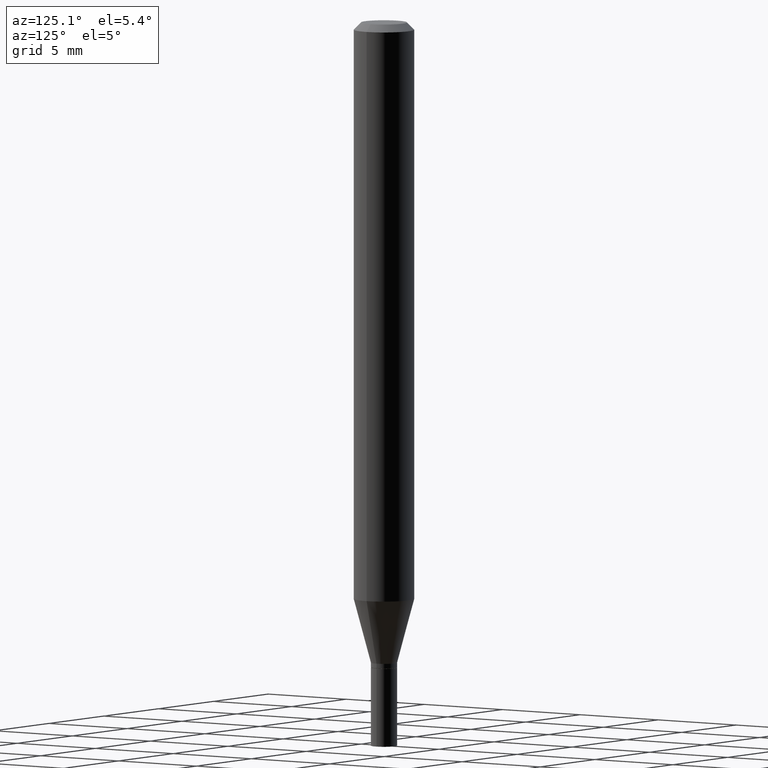
[diagram: clean part render]
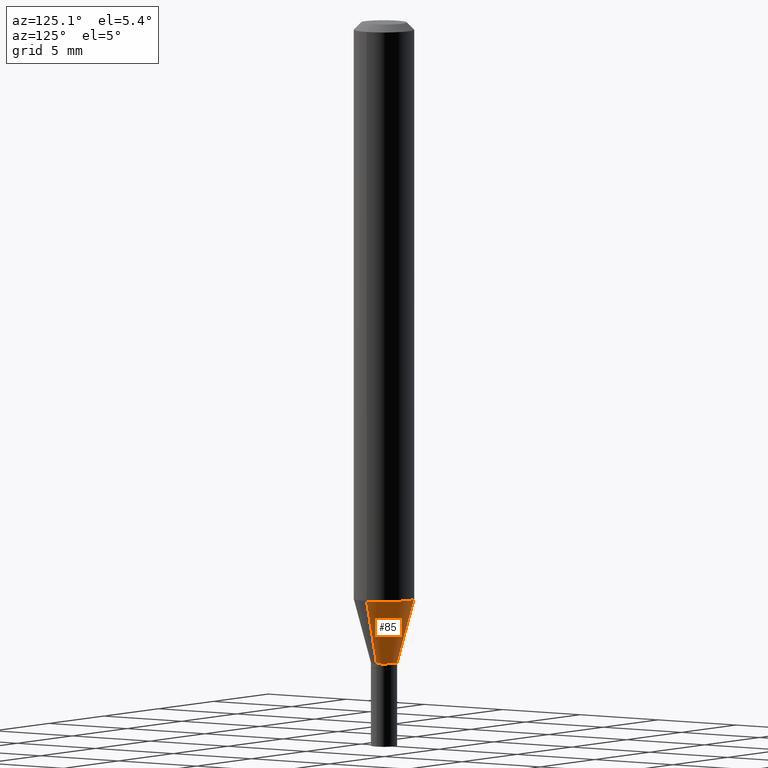
[diagram: same view with one face highlighted and labeled with its STEP entity id]
A machine part, auxiliary view. The second image highlights one B-rep face of the part: STEP entity #85.
In plain terms, the highlighted conical surface has half-angle 15 deg.
Its self-contained STEP definition (entity closure, byte-faithful):
#2 = EDGE_CURVE ( 'NONE', #42, #402, #408, .T. ) ;
#3 = DIRECTION ( 'NONE',  ( -0.2588190451025207395, 5.211531920934546309E-15, 0.9659258262890682012 ) ) ;
#14 = VECTOR ( 'NONE', #316, 39.37007874015748854 ) ;
#35 = EDGE_LOOP ( 'NONE', ( #266, #77, #74, #44 ) ) ;
#42 = VERTEX_POINT ( 'NONE', #252 ) ;
#44 = ORIENTED_EDGE ( 'NONE', *, *, #396, .F. ) ;
#50 = VECTOR ( 'NONE', #3, 39.37007874015748854 ) ;
#54 = DIRECTION ( 'NONE',  ( 1.000000000000000000, -6.982962677686279332E-15, 0.000000000000000000 ) ) ;
#55 = CARTESIAN_POINT ( 'NONE',  ( 0.02699999999999992684, -4.825227210281226768E-15, -1.328000000000000069 ) ) ;
#70 = CARTESIAN_POINT ( 'NONE',  ( 3.247582574613861342E-29, -4.636687217983698072E-15, -1.328000000000000069 ) ) ;
#74 = ORIENTED_EDGE ( 'NONE', *, *, #88, .F. ) ;
#77 = ORIENTED_EDGE ( 'NONE', *, *, #2, .T. ) ;
#85 = ADVANCED_FACE ( 'NONE', ( #243 ), #131, .T. ) ;
#88 = EDGE_CURVE ( 'NONE', #146, #402, #240, .T. ) ;
#99 = LINE ( 'NONE', #55, #14 ) ;
#128 = DIRECTION ( 'NONE',  ( -2.445468806185136597E-29, 3.491481338843145583E-15, 1.000000000000000000 ) ) ;
#131 = CONICAL_SURFACE ( 'NONE', #462, 0.02699999999999992684, 0.2617993877991494633 ) ;
#138 = EDGE_CURVE ( 'NONE', #257, #42, #264, .T. ) ;
#146 = VERTEX_POINT ( 'NONE', #195 ) ;
#149 = DIRECTION ( 'NONE',  ( -2.445468806185136597E-29, 3.491481338843145583E-15, 1.000000000000000000 ) ) ;
#179 = CARTESIAN_POINT ( 'NONE',  ( 2.923587783542086622E-29, -4.174108523850133238E-15, -1.195512196331304677 ) ) ;
#193 = CARTESIAN_POINT ( 'NONE',  ( 3.247582574613861342E-29, -4.636687217983698072E-15, -1.328000000000000069 ) ) ;
#195 = CARTESIAN_POINT ( 'NONE',  ( 0.06250000000000000000, -4.610543691205524908E-15, -1.195512196331304677 ) ) ;
#211 = DIRECTION ( 'NONE',  ( -2.445468806185136597E-29, 3.491481338843145583E-15, 1.000000000000000000 ) ) ;
#213 = CARTESIAN_POINT ( 'NONE',  ( -0.02699999999999992684, -4.444840679328471640E-15, -1.328000000000000069 ) ) ;
#240 = CIRCLE ( 'NONE', #314, 0.06250000000000000000 ) ;
#243 = FACE_OUTER_BOUND ( 'NONE', #35, .T. ) ;
#252 = CARTESIAN_POINT ( 'NONE',  ( -0.02699999999999992684, -4.087429996664271131E-15, -1.328000000000000069 ) ) ;
#257 = VERTEX_POINT ( 'NONE', #443 ) ;
#264 = CIRCLE ( 'NONE', #425, 0.02699999999999992684 ) ;
#266 = ORIENTED_EDGE ( 'NONE', *, *, #138, .T. ) ;
#299 = DIRECTION ( 'NONE',  ( 1.000000000000000000, -6.982962677686262766E-15, 0.000000000000000000 ) ) ;
#314 = AXIS2_PLACEMENT_3D ( 'NONE', #179, #149, #299 ) ;
#316 = DIRECTION ( 'NONE',  ( 0.2588190451025207395, 1.565188264969626109E-15, 0.9659258262890682012 ) ) ;
#341 = DIRECTION ( 'NONE',  ( 1.000000000000000000, -6.982962677686279332E-15, 0.000000000000000000 ) ) ;
#396 = EDGE_CURVE ( 'NONE', #257, #146, #99, .T. ) ;
#402 = VERTEX_POINT ( 'NONE', #423 ) ;
#408 = LINE ( 'NONE', #213, #50 ) ;
#423 = CARTESIAN_POINT ( 'NONE',  ( -0.06250000000000000000, -3.730019314000071411E-15, -1.195512196331304677 ) ) ;
#425 = AXIS2_PLACEMENT_3D ( 'NONE', #193, #128, #54 ) ;
#443 = CARTESIAN_POINT ( 'NONE',  ( 0.02699999999999992684, -4.825227210281226768E-15, -1.328000000000000069 ) ) ;
#462 = AXIS2_PLACEMENT_3D ( 'NONE', #70, #211, #341 ) ;